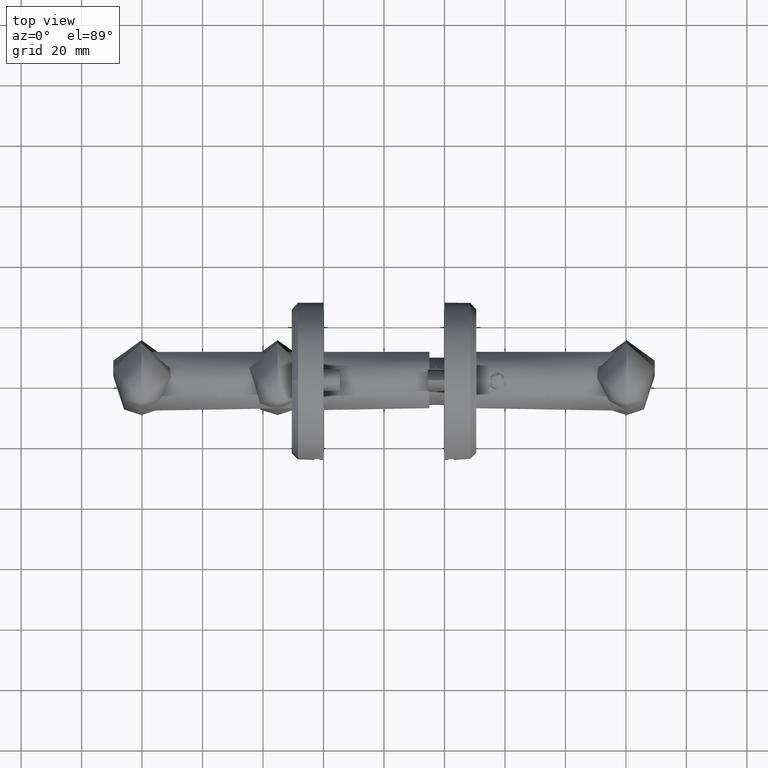
[diagram: clean part render]
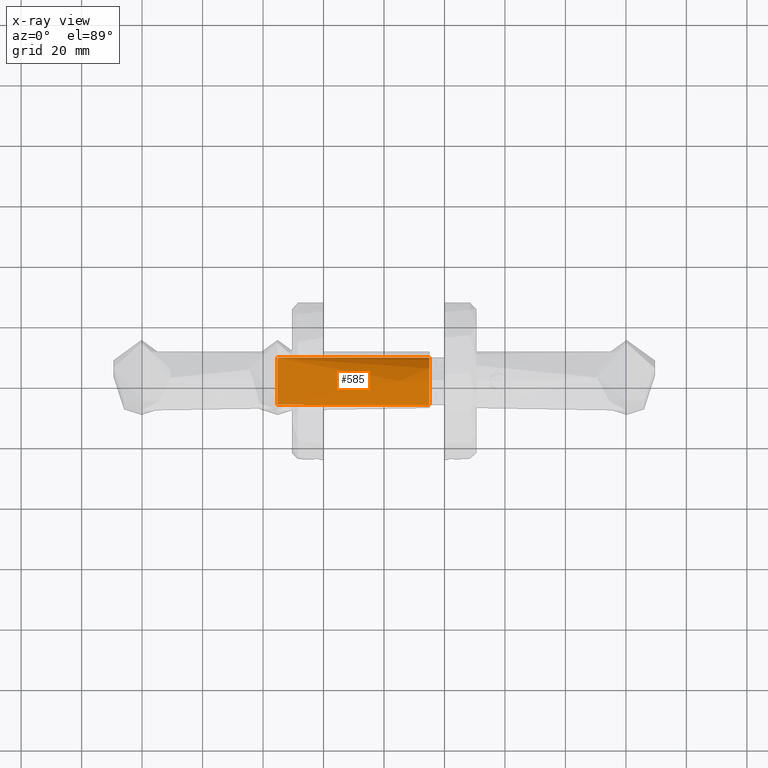
[diagram: x-ray — body ghosted, one internal face saturated and labeled with its STEP entity id]
A machine part, top view, then the same camera in x-ray: the body is ghosted and one INTERNAL B-rep face — a face not visible from any outside direction — is saturated and labeled: STEP entity #585.
In plain terms, the highlighted cylindrical surface (bore or boss wall) has radius 7.85 mm, axis along (1, -0, -0).
Its self-contained STEP definition (entity closure, byte-faithful):
#483 = EDGE_LOOP ( 'NONE', ( #28238 ) ) ;
#513 = CARTESIAN_POINT ( 'NONE',  ( -17.31532587136564100, -2.288003399344313000, 42.52402181039330000 ) ) ;
#585 = ADVANCED_FACE ( 'NONE', ( #10161, #4615, #11184 ), #27202, .F. ) ;
#626 = CARTESIAN_POINT ( 'NONE',  ( -10.03987284897339900, 7.847093641453542800, 49.64199969307728100 ) ) ;
#661 = CARTESIAN_POINT ( 'NONE',  ( -11.90043631003046600, -7.567200055874177000, 47.40332508401076000 ) ) ;
#734 = VERTEX_POINT ( 'NONE', #20572 ) ;
#824 = CARTESIAN_POINT ( 'NONE',  ( -2.049868104465796500, -1.255727908668482900, 9.667869604537875400 ) ) ;
#931 = CARTESIAN_POINT ( 'NONE',  ( -12.12122146639486800, -7.502580854129870900, 47.19331529731952200 ) ) ;
#1462 = CARTESIAN_POINT ( 'NONE',  ( -3.782977463901651100, -5.066237800518909900, 44.79690726945648300 ) ) ;
#1595 = AXIS2_PLACEMENT_3D ( 'NONE', #13936, #17586, #1683 ) ;
#1610 = CARTESIAN_POINT ( 'NONE',  ( -5.035955167327900400, -6.243557911127434000, 46.15237328415667400 ) ) ;
#1643 = CARTESIAN_POINT ( 'NONE',  ( -17.64097719977854000, 0.4889946867359876200, 42.42406860640232900 ) ) ;
#1683 = DIRECTION ( 'NONE',  ( 1.000000000000000000, 0.0000000000000000000, 0.0000000000000000000 ) ) ;
#1782 = CARTESIAN_POINT ( 'NONE',  ( -16.51687069836051700, 4.071418415973520100, 43.84978531900929300 ) ) ;
#1849 = CIRCLE ( 'NONE', #1595, 7.849999999999999600 ) ;
#1882 = CARTESIAN_POINT ( 'NONE',  ( -8.904186909384959500, -7.799501081086717100, 50.09166020782554100 ) ) ;
#2670 = CARTESIAN_POINT ( 'NONE',  ( -1.949999999999998200, 0.1663271035317408800, 9.999999999999996400 ) ) ;
#2818 = CARTESIAN_POINT ( 'NONE',  ( -2.050145285200958500, 1.257407322524558600, 5.333123441028845100 ) ) ;
#2955 = CARTESIAN_POINT ( 'NONE',  ( -2.178193592102573900, -1.882711239978610300, 5.847114561690540700 ) ) ;
#3880 = CARTESIAN_POINT ( 'NONE',  ( -9.494255321918954500, 7.847086902994357500, 49.08831572414558100 ) ) ;
#4074 = CARTESIAN_POINT ( 'NONE',  ( -2.204762430838684400, -1.997535714934928900, 9.037818931509361800 ) ) ;
#4330 = CARTESIAN_POINT ( 'NONE',  ( -14.66725453796520500, -6.164306140161216700, 44.81607272766308400 ) ) ;
#4610 = CARTESIAN_POINT ( 'NONE',  ( -17.31942992291335100, 2.273915927210082600, 42.89186871821598900 ) ) ;
#4615 = FACE_OUTER_BOUND ( 'NONE', #36389, .T. ) ;
#4725 = CARTESIAN_POINT ( 'NONE',  ( -8.791620017838916100, -7.785768332955729700, 49.98044558772727400 ) ) ;
#4764 = CARTESIAN_POINT ( 'NONE',  ( -11.02131854578453000, 7.755186897200636600, 49.75238762469552300 ) ) ;
#4916 = CARTESIAN_POINT ( 'NONE',  ( -17.58233231739687200, -1.074816901485156700, 42.35636417221513700 ) ) ;
#5041 = CARTESIAN_POINT ( 'NONE',  ( -15.76091499472145500, 5.131780120186816100, 44.70410793753897100 ) ) ;
#5150 = CARTESIAN_POINT ( 'NONE',  ( -1.955194595558460600, -0.4213430092297919500, 42.46154111594128000 ) ) ;
#5646 = CARTESIAN_POINT ( 'NONE',  ( -2.027718302237828700, 1.112353659052460300, 9.744878191350068200 ) ) ;
#5928 = CARTESIAN_POINT ( 'NONE',  ( -2.124991034199239100, 1.652487650323282800, 5.616965081919940600 ) ) ;
#6059 = CARTESIAN_POINT ( 'NONE',  ( -2.049835540205379800, 1.255547246565432900, 9.667990771411913500 ) ) ;
#7022 = CARTESIAN_POINT ( 'NONE',  ( -17.53370086884455500, -1.381462903270399100, 42.38009952389478500 ) ) ;
#7131 = CARTESIAN_POINT ( 'NONE',  ( -8.404559034720211500, 7.737930757024629200, 47.99465762216759400 ) ) ;
#7164 = CARTESIAN_POINT ( 'NONE',  ( -12.56211748381757000, -7.351700182569864200, 46.77563113907169200 ) ) ;
#7553 = CARTESIAN_POINT ( 'NONE',  ( -10.47816942283745700, 7.821401058752291700, 50.08951276577695200 ) ) ;
#7844 = CARTESIAN_POINT ( 'NONE',  ( -5.000545026934668500, 6.217200802100937700, 44.72397148926853600 ) ) ;
#7990 = CARTESIAN_POINT ( 'NONE',  ( -4.410091946465869700, 5.713299252161624200, 44.18793875970268900 ) ) ;
#8021 = CARTESIAN_POINT ( 'NONE',  ( -17.02360689835054000, 3.086085916477590500, 43.25646310387199400 ) ) ;
#8121 = CARTESIAN_POINT ( 'NONE',  ( -4.847988861500415000, -6.095832138282344400, 45.95257739796779400 ) ) ;
#8205 = ORIENTED_EDGE ( 'NONE', *, *, #20852, .F. ) ;
#8391 = CARTESIAN_POINT ( 'NONE',  ( -2.345243838715060900, -2.475908916732690200, 43.08861649667552700 ) ) ;
#8753 = CARTESIAN_POINT ( 'NONE',  ( -2.204687313181853600, 1.997229744117845900, 9.038161069933446300 ) ) ;
#9029 = CARTESIAN_POINT ( 'NONE',  ( -2.332032967751784800, 2.419320908842567300, 6.849024537163264100 ) ) ;
#9162 = CARTESIAN_POINT ( 'NONE',  ( -2.098814674166300500, 1.527437675453570100, 5.514210146021983200 ) ) ;
#9306 = CARTESIAN_POINT ( 'NONE',  ( -2.353169705818932500, 2.483619098085724000, 7.170577947304400000 ) ) ;
#9578 = CARTESIAN_POINT ( 'NONE',  ( -1.949999999999998200, -0.1663271035317419900, 10.00000000000000000 ) ) ;
#9725 = CARTESIAN_POINT ( 'NONE',  ( -1.955280179655494600, -0.3298365753949358300, 9.983558267054547700 ) ) ;
#10089 = DIRECTION ( 'NONE',  ( -1.224646799147353200E-016, -0.0000000000000000000, -1.000000000000000000 ) ) ;
#10161 = FACE_BOUND ( 'NONE', #483, .T. ) ;
#10232 = DIRECTION ( 'NONE',  ( -1.000000000000000000, 0.0000000000000000000, 0.0000000000000000000 ) ) ;
#10262 = CARTESIAN_POINT ( 'NONE',  ( -9.459704108619098100, -7.843414624637739000, 49.76182795653080900 ) ) ;
#10400 = CARTESIAN_POINT ( 'NONE',  ( -15.80731423590900100, -5.080951594061787100, 43.78635173073009700 ) ) ;
#10507 = CARTESIAN_POINT ( 'NONE',  ( -10.36751956517991000, 7.830223067058288900, 49.97629141411341900 ) ) ;
#10539 = CARTESIAN_POINT ( 'NONE',  ( -9.236876554972322900, -7.830571259705900300, 49.98058137556689200 ) ) ;
#10609 = EDGE_CURVE ( 'NONE', #21195, #21195, #27437, .T. ) ;
#11073 = CARTESIAN_POINT ( 'NONE',  ( -2.056914291122928300, -1.326164611410772600, 42.66930865353208400 ) ) ;
#11184 = FACE_OUTER_BOUND ( 'NONE', #17871, .T. ) ;
#11251 = CARTESIAN_POINT ( 'NONE',  ( -17.22917288701107500, 2.551825448708897600, 43.00543950613543100 ) ) ;
#11358 = CARTESIAN_POINT ( 'NONE',  ( -8.570131529530279100, -7.753866278716955700, 49.76112731781631700 ) ) ;
#11392 = CARTESIAN_POINT ( 'NONE',  ( -12.72703643236988000, 7.297684999174434100, 47.97575430502448100 ) ) ;
#11493 = CARTESIAN_POINT ( 'NONE',  ( -4.300230340991149100, -5.606892197169144300, 45.36319065626995700 ) ) ;
#11615 = CARTESIAN_POINT ( 'NONE',  ( -2.216812762716661400, 2.052903883713993200, 42.42584874547718200 ) ) ;
#11970 = CARTESIAN_POINT ( 'NONE',  ( -2.254496921815401400, -2.167170158535894700, 6.243169797845398600 ) ) ;
#12235 = CARTESIAN_POINT ( 'NONE',  ( -2.027546660310501900, 1.111073571916675600, 5.254535162568857700 ) ) ;
#12376 = CARTESIAN_POINT ( 'NONE',  ( -1.949978466111723200, -0.1628314269536437500, 4.999932383585607100 ) ) ;
#12504 = CARTESIAN_POINT ( 'NONE',  ( -1.975611367669899600, 0.6539639519109069500, 5.081424318018343400 ) ) ;
#12639 = CARTESIAN_POINT ( 'NONE',  ( -2.353057057999237600, -2.483281829276063700, 7.168260144729437400 ) ) ;
#12786 = CARTESIAN_POINT ( 'NONE',  ( -2.027775020038259600, -1.112723584859277100, 9.744680884073275700 ) ) ;
#13645 = CARTESIAN_POINT ( 'NONE',  ( -2.316337309387352500, -2.370987707599417700, 8.309321842416741400 ) ) ;
#13936 = CARTESIAN_POINT ( 'NONE',  ( -9.799999999999998900, 0.0000000000000000000, 0.0000000000000000000 ) ) ;
#14037 = CARTESIAN_POINT ( 'NONE',  ( -16.14776600936174200, -4.653703187810792800, 43.48619877157937500 ) ) ;
#14179 = CARTESIAN_POINT ( 'NONE',  ( -13.93388432315697600, 6.689626867736051500, 46.69400193669616800 ) ) ;
#14223 = EDGE_CURVE ( 'NONE', #734, #37220, #41248, .T. ) ;
#14326 = CARTESIAN_POINT ( 'NONE',  ( -11.12960343426915200, 7.737358086037151100, 49.64065926080770900 ) ) ;
#14444 = CARTESIAN_POINT ( 'NONE',  ( -8.129866990928746900, -7.673541394734199300, 49.32346006464679500 ) ) ;
#14480 = CARTESIAN_POINT ( 'NONE',  ( -11.66793071827842500, 7.627725179356551700, 49.08317888740896300 ) ) ;
#14609 = CARTESIAN_POINT ( 'NONE',  ( -15.24186265394465600, 5.663031392254713300, 45.27608474677894900 ) ) ;
#14702 = EDGE_CURVE ( 'NONE', #37220, #734, #22753, .T. ) ;
#14710 = CARTESIAN_POINT ( 'NONE',  ( -1.977795095731319700, -0.7260849173544671200, 42.52010952302188000 ) ) ;
#14745 = CARTESIAN_POINT ( 'NONE',  ( -15.06168005439654100, 5.830557399867164900, 45.47338514764373200 ) ) ;
#15200 = CARTESIAN_POINT ( 'NONE',  ( -2.277493905325213700, -2.244724847799437000, 6.387186893733559900 ) ) ;
#15348 = CARTESIAN_POINT ( 'NONE',  ( -2.125298850725599700, 1.653862943130006500, 9.381742250496412100 ) ) ;
#15484 = CARTESIAN_POINT ( 'NONE',  ( -1.955152015191740500, -0.3275476067856481500, 5.016033858577814400 ) ) ;
#16155 = CARTESIAN_POINT ( 'NONE',  ( -1.990504578532322100, -0.8108120482076932600, 9.870512575395308000 ) ) ;
#16856 = CARTESIAN_POINT ( 'NONE',  ( -16.60429578776568200, -3.925073948355164000, 43.09515623403490300 ) ) ;
#16884 = CARTESIAN_POINT ( 'NONE',  ( -2.258555993685984000, -2.183181670281120200, 8.760974231041236800 ) ) ;
#17127 = CARTESIAN_POINT ( 'NONE',  ( -13.85450018151923000, -6.740146679965000100, 45.56411684919370900 ) ) ;
#17586 = DIRECTION ( 'NONE',  ( 0.0000000000000000000, 0.0000000000000000000, 1.000000000000000000 ) ) ;
#17649 = CARTESIAN_POINT ( 'NONE',  ( -2.026820878766430100, 1.139482923876236500, 42.34633142663488300 ) ) ;
#17796 = CARTESIAN_POINT ( 'NONE',  ( -8.459773574521914700, -7.735555156523831000, 49.65160785280210100 ) ) ;
#17871 = EDGE_LOOP ( 'NONE', ( #8205 ) ) ;
#17934 = CARTESIAN_POINT ( 'NONE',  ( -3.503529306912297200, 4.723311325200692900, 43.39334666564106200 ) ) ;
#18556 = CARTESIAN_POINT ( 'NONE',  ( -2.353210535344119100, 2.483744156676578600, 7.828896883903580900 ) ) ;
#18687 = CARTESIAN_POINT ( 'NONE',  ( -2.358767590165170300, 2.500112044877544500, 7.337458955391054100 ) ) ;
#18832 = CARTESIAN_POINT ( 'NONE',  ( -2.049972585820542600, -1.256354931608741900, 5.332506363625984800 ) ) ;
#19381 = CARTESIAN_POINT ( 'NONE',  ( -2.358739951104620300, -2.500029776963275600, 7.664322337496978200 ) ) ;
#19918 = AXIS2_PLACEMENT_3D ( 'NONE', #38615, #10089, #10232 ) ;
#19923 = CARTESIAN_POINT ( 'NONE',  ( -10.12737818787634000, -7.846331537714827500, 49.10972274055210100 ) ) ;
#20022 = CARTESIAN_POINT ( 'NONE',  ( -7.534168729457768200, 7.519378616616558400, 47.13669922237162500 ) ) ;
#20057 = CARTESIAN_POINT ( 'NONE',  ( -16.74600991417017700, -3.669070247036864400, 42.97596930742971500 ) ) ;
#20221 = CARTESIAN_POINT ( 'NONE',  ( -1.949999999999998200, 4.065758146820641600E-017, 9.999999999999998200 ) ) ;
#20469 = CARTESIAN_POINT ( 'NONE',  ( -17.47106100571689100, 1.693323080866178600, 42.69209279862671000 ) ) ;
#20572 = CARTESIAN_POINT ( 'NONE',  ( -9.014077483356745200, -7.810558609845588600, 50.19999999999999600 ) ) ;
#20574 = CARTESIAN_POINT ( 'NONE',  ( -2.629382731231838700, 3.208182435821006300, 42.69893283818598900 ) ) ;
#20608 = CARTESIAN_POINT ( 'NONE',  ( -17.65504210499019100, -0.1354724323772378600, 42.35956399283468700 ) ) ;
#20714 = CARTESIAN_POINT ( 'NONE',  ( -6.009627765331708300, -6.889400311850685000, 47.17292295632994800 ) ) ;
#20754 = CARTESIAN_POINT ( 'NONE',  ( -17.64310225698656300, -0.4535136784819227000, 42.34586060223377800 ) ) ;
#20852 = EDGE_CURVE ( 'NONE', #28177, #28177, #1849, .T. ) ;
#20860 = CARTESIAN_POINT ( 'NONE',  ( -5.611162879024378800, -6.655726692344218000, 46.75897016553399500 ) ) ;
#20996 = CARTESIAN_POINT ( 'NONE',  ( -2.113976737480300900, -1.623472047118594800, 42.76070699091233300 ) ) ;
#21026 = CARTESIAN_POINT ( 'NONE',  ( -10.58592251664328800, 7.810558609845588600, 50.19999999999999600 ) ) ;
#21125 = CARTESIAN_POINT ( 'NONE',  ( -7.911483504577550000, -7.622771278284862900, 49.10524160871001700 ) ) ;
#21195 = VERTEX_POINT ( 'NONE', #38356 ) ;
#22174 = CARTESIAN_POINT ( 'NONE',  ( -2.124852006187536900, -1.651858893999299700, 5.616388023070397800 ) ) ;
#22753 = B_SPLINE_CURVE_WITH_KNOTS ( 'NONE', 3,
 ( #36254, #7553, #10507, #36542, #626, #23100, #3880, #26323, #7131, #29534, #20022, #37099, #36824, #27161, #33739, #27568, #7844, #30648, #7990, #30786, #17934, #27304, #36970, #20574, #30372, #27029, #11615, #39885, #17649, #24090, #30238, #5150, #14710, #11073, #20996, #39738, #8391, #24226, #27443, #40298, #1462, #11493, #23950, #8121, #1610, #20860, #20714, #36682, #33875, #21125, #14444, #17796, #11358, #4725, #1882, #30515 ),
 .UNSPECIFIED., .F., .F.,
 ( 4, 2, 2, 2, 2, 2, 2, 2, 2, 2, 2, 2, 2, 2, 2, 2, 2, 2, 2, 2, 2, 2, 2, 2, 2, 2, 2, 4 ),
 ( -1.772004785652899100E-005, 0.0004464150464393790600, 0.0009105501407352871300, 0.001838820329327084600, 0.003695360706510680200, 0.004623630895102485300, 0.005551901083694289900, 0.007408441460877899200, 0.008336711649469702100, 0.009264981838061505900, 0.01112152221524512200, 0.01204979240383693100, 0.01297806259242874200, 0.01390633278102055100, 0.01483460296961236100, 0.01576287315820416900, 0.01669114334679597900, 0.01761941353538778700, 0.01854768372397959700, 0.02040422410116320800, 0.02226076447834681600, 0.02318903466693862000, 0.02411730485553041600, 0.02597384523271402100, 0.02783038560989762100, 0.02875865579848942500, 0.02922279089278532300, 0.02968692598708122200 ),
 .UNSPECIFIED. ) ;
#23100 = CARTESIAN_POINT ( 'NONE',  ( -9.712414958200753300, 7.852547310657473500, 49.30911419064306500 ) ) ;
#23133 = CARTESIAN_POINT ( 'NONE',  ( -9.014077483356745200, -7.810558609845588600, 50.19999999999999600 ) ) ;
#23237 = CARTESIAN_POINT ( 'NONE',  ( -1.950000000000000400, 0.0000000000000000000, 0.0000000000000000000 ) ) ;
#23297 = CARTESIAN_POINT ( 'NONE',  ( -2.331899841439349300, -2.418910466870162900, 6.847610447314200300 ) ) ;
#23444 = CARTESIAN_POINT ( 'NONE',  ( -2.098586111927947400, -1.526309635492226500, 9.486678156997689000 ) ) ;
#23562 = CARTESIAN_POINT ( 'NONE',  ( -14.46662676304714700, -6.317167632868615700, 44.99996244556921700 ) ) ;
#23950 = CARTESIAN_POINT ( 'NONE',  ( -4.480328247595651600, -5.777774331056130900, 45.55821498476498700 ) ) ;
#23985 = CARTESIAN_POINT ( 'NONE',  ( -11.45342505654135000, 7.677037668159558200, 49.30586156844128000 ) ) ;
#24090 = CARTESIAN_POINT ( 'NONE',  ( -1.960717761994571500, 0.5161288380623881800, 42.35526429740050200 ) ) ;
#24226 = CARTESIAN_POINT ( 'NONE',  ( -2.643572889249024900, -3.275989707126242500, 43.47529654779253100 ) ) ;
#25121 = CARTESIAN_POINT ( 'NONE',  ( -2.358691909127922600, 2.499886779604182600, 7.665969627596669300 ) ) ;
#25261 = CARTESIAN_POINT ( 'NONE',  ( -1.975360598605847800, 0.6506773914354812000, 9.919382335193820000 ) ) ;
#25400 = CARTESIAN_POINT ( 'NONE',  ( -2.205016718890028500, -1.986824642136727300, 5.973967072932325100 ) ) ;
#26215 = CARTESIAN_POINT ( 'NONE',  ( -15.25367515574217400, -5.652457487958579400, 44.28318356639226000 ) ) ;
#26258 = ORIENTED_EDGE ( 'NONE', *, *, #14223, .F. ) ;
#26323 = CARTESIAN_POINT ( 'NONE',  ( -8.840144733548879000, 7.803344702930146100, 48.42937470233896100 ) ) ;
#26624 = CARTESIAN_POINT ( 'NONE',  ( -10.79383771861335400, -7.799561968444352900, 48.46332491199007800 ) ) ;
#26773 = CARTESIAN_POINT ( 'NONE',  ( -11.23718816572121200, -7.730743023072059300, 48.03667941258014900 ) ) ;
#27029 = CARTESIAN_POINT ( 'NONE',  ( -2.305103430157554400, 2.354357657925032000, 42.47764427159916100 ) ) ;
#27063 = CARTESIAN_POINT ( 'NONE',  ( -17.53058232060641000, 1.397507719230556100, 42.60830944286331600 ) ) ;
#27161 = CARTESIAN_POINT ( 'NONE',  ( -6.234983003530801100, 7.009554093672089300, 45.87903880737526000 ) ) ;
#27202 = CYLINDRICAL_SURFACE ( 'NONE', #19918, 7.849999999999999600 ) ;
#27304 = CARTESIAN_POINT ( 'NONE',  ( -3.036446450146979000, 3.994999579998861300, 43.01204082605246300 ) ) ;
#27338 = CARTESIAN_POINT ( 'NONE',  ( -16.65483618705011500, 3.835432788322363300, 43.69069679202258500 ) ) ;
#27437 = B_SPLINE_CURVE_WITH_KNOTS ( 'NONE', 3,
 ( #28339, #2670, #31281, #25261, #37852, #5646, #6059, #28057, #15348, #8753, #40936, #34497, #37721, #18556, #25121, #18687, #9306, #9029, #31432, #41070, #31703, #34364, #41354, #5928, #9162, #2818, #12235, #37991, #12504, #34631, #31144, #12376, #15484, #27931, #34765, #38124, #18832, #34913, #22174, #2955, #25400, #11970, #15200, #36170, #23297, #12639, #28756, #19381, #28621, #39375, #13645, #16884, #4074, #31978, #23444, #824, #12786, #16155, #32108, #9725, #9578, #20221 ),
 .UNSPECIFIED., .T., .F.,
 ( 4, 2, 2, 2, 2, 2, 2, 2, 2, 2, 2, 2, 2, 2, 2, 2, 2, 2, 2, 2, 2, 2, 2, 2, 2, 2, 2, 2, 2, 2, 4 ),
 ( 0.0000000000000000000, 0.0004916676346564882700, 0.0009833352693129765500, 0.001475002903969464600, 0.001966670538625953100, 0.002950005807938929600, 0.003441673442595421400, 0.003933341077251912300, 0.004425008711908403100, 0.004916676346564894000, 0.005408343981221384900, 0.005900011615877874900, 0.006391679250534365800, 0.006883346885190857500, 0.007375014519847348400, 0.007866682154503840100, 0.008358349789160331900, 0.008850017423816823600, 0.009341685058473315300, 0.009833352693129807100, 0.01032502032778629900, 0.01081668796244279100, 0.01130835559709928200, 0.01180002323175577200, 0.01229169086641226600, 0.01278335850106875800, 0.01376669377038174400, 0.01425836140503823600, 0.01475002903969472800, 0.01524169667435122000, 0.01573336430900771100 ),
 .UNSPECIFIED. ) ;
#27443 = CARTESIAN_POINT ( 'NONE',  ( -2.896362948148662600, -3.773928907998083100, 43.78099638258747500 ) ) ;
#27477 = CARTESIAN_POINT ( 'NONE',  ( -10.69371376164073300, 7.799712322048238300, 50.08947364663069400 ) ) ;
#27568 = CARTESIAN_POINT ( 'NONE',  ( -5.201818010850718800, 6.367101408217365600, 44.90957584954142600 ) ) ;
#27931 = CARTESIAN_POINT ( 'NONE',  ( -1.975438278726475500, -0.6520438707957722000, 5.080865027122190000 ) ) ;
#28057 = CARTESIAN_POINT ( 'NONE',  ( -2.098619396321418600, 1.526494297239596300, 9.486554311812351900 ) ) ;
#28177 = VERTEX_POINT ( 'NONE', #23237 ) ;
#28238 = ORIENTED_EDGE ( 'NONE', *, *, #10609, .F. ) ;
#28339 = CARTESIAN_POINT ( 'NONE',  ( -1.949999999999998200, 4.065758146820641600E-017, 9.999999999999998200 ) ) ;
#28621 = CARTESIAN_POINT ( 'NONE',  ( -2.353272379704623800, -2.483927050670780900, 7.827365174470015700 ) ) ;
#28756 = CARTESIAN_POINT ( 'NONE',  ( -2.358719915615796300, -2.499970141168991400, 7.334772854630321200 ) ) ;
#29327 = ORIENTED_EDGE ( 'NONE', *, *, #14702, .F. ) ;
#29431 = CARTESIAN_POINT ( 'NONE',  ( -17.40070317591662900, -1.986927304530855300, 42.46351899659085700 ) ) ;
#29534 = CARTESIAN_POINT ( 'NONE',  ( -7.751700691211350000, 7.581362141042872900, 47.35022812367291300 ) ) ;
#29563 = CARTESIAN_POINT ( 'NONE',  ( -13.43284565775380600, -6.974974123744857500, 45.95675279289552200 ) ) ;
#29707 = CARTESIAN_POINT ( 'NONE',  ( -9.124006965367426500, -7.821620053651450600, 50.09162184905687100 ) ) ;
#30238 = CARTESIAN_POINT ( 'NONE',  ( -1.946390141544029500, 0.1982774726114969200, 42.37903304169466200 ) ) ;
#30372 = CARTESIAN_POINT ( 'NONE',  ( -2.511529594796389800, 2.931667396983739700, 42.61436762985481900 ) ) ;
#30411 = CARTESIAN_POINT ( 'NONE',  ( -16.08183068862890500, 4.737330765851699400, 44.34558721341632300 ) ) ;
#30515 = CARTESIAN_POINT ( 'NONE',  ( -9.014077483356745200, -7.810558609845588600, 50.19999999999999600 ) ) ;
#30549 = CARTESIAN_POINT ( 'NONE',  ( -12.30731062708954400, 7.451933959691010600, 48.41678061275008100 ) ) ;
#30648 = CARTESIAN_POINT ( 'NONE',  ( -4.604739818195842100, 5.890469038666305200, 44.36318947402303100 ) ) ;
#30786 = CARTESIAN_POINT ( 'NONE',  ( -3.849887251231562100, 5.147839057133947600, 43.69083989677952900 ) ) ;
#31144 = CARTESIAN_POINT ( 'NONE',  ( -1.950021670309640200, 0.1649011203877698300, 5.000068044777506800 ) ) ;
#31281 = CARTESIAN_POINT ( 'NONE',  ( -1.955276754880811700, 0.3296665543572501200, 9.983568383296781000 ) ) ;
#31432 = CARTESIAN_POINT ( 'NONE',  ( -2.316578114705564400, 2.371764267103500400, 6.692637083956151800 ) ) ;
#31703 = CARTESIAN_POINT ( 'NONE',  ( -2.254673965305794300, 2.167789861347160700, 6.244209587272364600 ) ) ;
#31978 = CARTESIAN_POINT ( 'NONE',  ( -2.125309370236190700, -1.653917895037603200, 9.381705236244954400 ) ) ;
#32108 = CARTESIAN_POINT ( 'NONE',  ( -1.975401069011177400, -0.6512087187244577400, 9.919252164818805900 ) ) ;
#32853 = CARTESIAN_POINT ( 'NONE',  ( -10.58592251664328800, 7.810558609845588600, 50.19999999999999600 ) ) ;
#33196 = CARTESIAN_POINT ( 'NONE',  ( -9.571065352240067300, -7.847450593860811500, 49.65273128482786500 ) ) ;
#33626 = CARTESIAN_POINT ( 'NONE',  ( -14.69379434455319900, 6.142593385631117000, 45.87396442749074800 ) ) ;
#33739 = CARTESIAN_POINT ( 'NONE',  ( -5.814598889398900500, 6.781010970278689600, 45.48024335578170300 ) ) ;
#33875 = CARTESIAN_POINT ( 'NONE',  ( -7.261137647845193200, -7.441721844769528400, 48.45218612698721500 ) ) ;
#34364 = CARTESIAN_POINT ( 'NONE',  ( -2.205139297483595500, 1.987296848023905700, 5.974557873437202500 ) ) ;
#34497 = CARTESIAN_POINT ( 'NONE',  ( -2.316176063174189900, 2.370476067375543000, 8.310737631373982000 ) ) ;
#34631 = CARTESIAN_POINT ( 'NONE',  ( -1.955297538070216000, 0.3307107556887488600, 5.016492887881384800 ) ) ;
#34765 = CARTESIAN_POINT ( 'NONE',  ( -1.990259856097236400, -0.8084216882191634900, 5.128687615706722300 ) ) ;
#34913 = CARTESIAN_POINT ( 'NONE',  ( -2.098649725234983600, -1.526616055230511000, 5.513571094196450400 ) ) ;
#36170 = CARTESIAN_POINT ( 'NONE',  ( -2.316444650212621200, -2.371347067262870500, 6.691386533385474100 ) ) ;
#36254 = CARTESIAN_POINT ( 'NONE',  ( -10.58592251664328800, 7.810558609845588600, 50.19999999999999600 ) ) ;
#36288 = CARTESIAN_POINT ( 'NONE',  ( -12.78263012169973600, -7.265173807771028600, 46.56758575189367400 ) ) ;
#36389 = EDGE_LOOP ( 'NONE', ( #26258, #29327 ) ) ;
#36436 = CARTESIAN_POINT ( 'NONE',  ( -17.00125967782815600, -3.138628563230745800, 42.76654182159023800 ) ) ;
#36542 = CARTESIAN_POINT ( 'NONE',  ( -10.14906194450730200, 7.842998629073608000, 49.75324319816517300 ) ) ;
#36576 = CARTESIAN_POINT ( 'NONE',  ( -13.53935320962314200, 6.916717877525238500, 47.11537013093036600 ) ) ;
#36682 = CARTESIAN_POINT ( 'NONE',  ( -6.833482485500330700, -7.282206545439324300, 48.01840837508547800 ) ) ;
#36824 = CARTESIAN_POINT ( 'NONE',  ( -6.881048781463417400, 7.290911978491533500, 46.50091243962962300 ) ) ;
#36858 = CARTESIAN_POINT ( 'NONE',  ( -10.80405514738973100, 7.786296684675574100, 49.97609621203142900 ) ) ;
#36970 = CARTESIAN_POINT ( 'NONE',  ( -2.891456169634968500, 3.739279168582071700, 42.89745168030212600 ) ) ;
#37005 = CARTESIAN_POINT ( 'NONE',  ( -17.61551269102036700, 0.7954195229443045100, 42.47433107272650000 ) ) ;
#37099 = CARTESIAN_POINT ( 'NONE',  ( -7.099254023850740200, 7.374348601667199100, 46.71243518109360300 ) ) ;
#37220 = VERTEX_POINT ( 'NONE', #32853 ) ;
#37721 = CARTESIAN_POINT ( 'NONE',  ( -2.331953651937848500, 2.419078772989926600, 8.152085949960657300 ) ) ;
#37852 = CARTESIAN_POINT ( 'NONE',  ( -1.990422550186740700, 0.8100577186500027600, 9.870783678293340900 ) ) ;
#37991 = CARTESIAN_POINT ( 'NONE',  ( -1.990421415154602500, 0.8099368660496081300, 5.129219729421325100 ) ) ;
#38124 = CARTESIAN_POINT ( 'NONE',  ( -2.027393085559538600, -1.110030853112572200, 5.254003660950452600 ) ) ;
#38356 = CARTESIAN_POINT ( 'NONE',  ( -1.949999999999998600, 0.0000000000000000000, 9.999999999999998200 ) ) ;
#38615 = CARTESIAN_POINT ( 'NONE',  ( -9.799999999999993600, 0.0000000000000000000, 50.20000000000000300 ) ) ;
#39202 = CARTESIAN_POINT ( 'NONE',  ( -15.06085501153449100, -5.832001498163774200, 44.45760583650118700 ) ) ;
#39375 = CARTESIAN_POINT ( 'NONE',  ( -2.332127616856064300, -2.419613174249180000, 8.150025874492417400 ) ) ;
#39486 = CARTESIAN_POINT ( 'NONE',  ( -9.904984537907843400, -7.852454764653264100, 49.32626669557854600 ) ) ;
#39619 = CARTESIAN_POINT ( 'NONE',  ( -17.11567303580590100, -2.862867538223059100, 42.67554279985493800 ) ) ;
#39738 = CARTESIAN_POINT ( 'NONE',  ( -2.258531539225102900, -2.199288188234296300, 42.97085482410054900 ) ) ;
#39885 = CARTESIAN_POINT ( 'NONE',  ( -2.078218025250782000, 1.446798592031032200, 42.36057807911903000 ) ) ;
#39924 = CARTESIAN_POINT ( 'NONE',  ( -16.90827474861568200, 3.342417377172217200, 43.39393704309358700 ) ) ;
#40187 = CARTESIAN_POINT ( 'NONE',  ( -14.50625975701241400, 6.287131373386449300, 46.07707232322012200 ) ) ;
#40298 = CARTESIAN_POINT ( 'NONE',  ( -3.465571554979214800, -4.666664785607575400, 44.44102422564481000 ) ) ;
#40936 = CARTESIAN_POINT ( 'NONE',  ( -2.258489346735784900, 2.182940008413207300, 8.761182814414098600 ) ) ;
#41070 = CARTESIAN_POINT ( 'NONE',  ( -2.277701288959405700, 2.245415541473275000, 6.388600133605320900 ) ) ;
#41248 = B_SPLINE_CURVE_WITH_KNOTS ( 'NONE', 3,
 ( #23133, #29707, #10539, #10262, #33196, #39486, #19923, #26624, #26773, #661, #931, #7164, #36288, #29563, #17127, #23562, #4330, #39202, #26215, #10400, #14037, #16856, #20057, #36436, #39619, #513, #29431, #7022, #4916, #20754, #20608, #1643, #37005, #27063, #20469, #4610, #11251, #8021, #39924, #27338, #1782, #30411, #5041, #14609, #14745, #33626, #40187, #14179, #36576, #11392, #30549, #14480, #23985, #14326, #4764, #36858, #27477, #21026 ),
 .UNSPECIFIED., .F., .F.,
 ( 4, 2, 2, 2, 2, 2, 2, 2, 2, 2, 2, 2, 2, 2, 2, 2, 2, 2, 2, 2, 2, 2, 2, 2, 2, 2, 2, 2, 4 ),
 ( -1.806445715212883400E-005, 0.0004462349691696125600, 0.0009105343954913540300, 0.001839133248134836900, 0.003696330953421787500, 0.004624929806065272500, 0.005553528658708757100, 0.007410726363995726200, 0.008339325216639208200, 0.009267924069282691000, 0.01112512177456964100, 0.01205372062721311700, 0.01298231947985659300, 0.01391091833250006900, 0.01483951718514354500, 0.01576811603778701500, 0.01669671489043049500, 0.01762531374307397100, 0.01855391259571744600, 0.01948251144836092200, 0.02041111030100439800, 0.02226830800629133600, 0.02319690685893479800, 0.02412550571157826000, 0.02598270341686519100, 0.02783990112215212200, 0.02876849997479558400, 0.02923279940111732400, 0.02969709882743905600 ),
 .UNSPECIFIED. ) ;
#41354 = CARTESIAN_POINT ( 'NONE',  ( -2.178237088088301300, 1.882872320206647100, 5.847327085301090600 ) ) ;